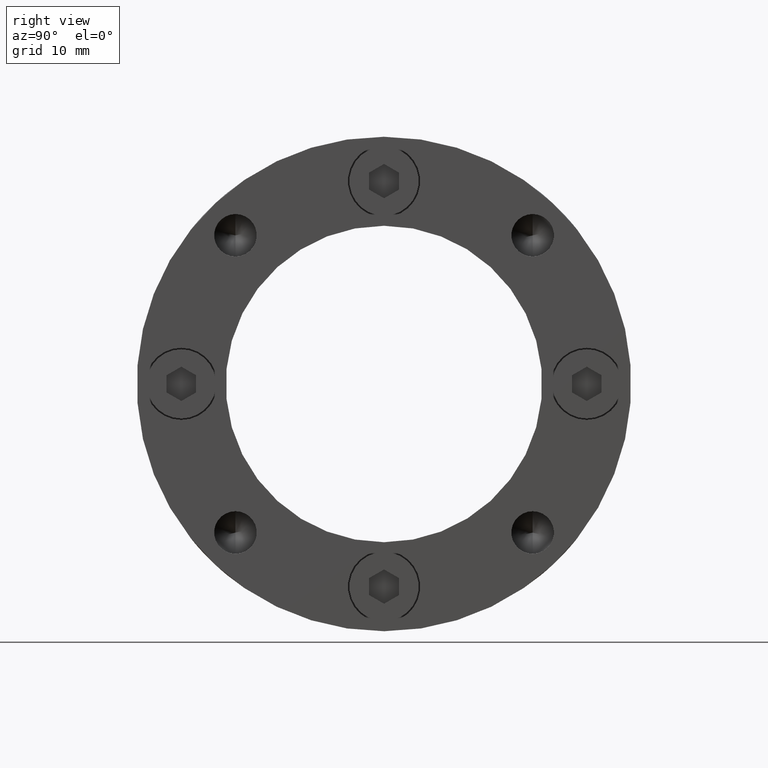
[diagram: clean part render]
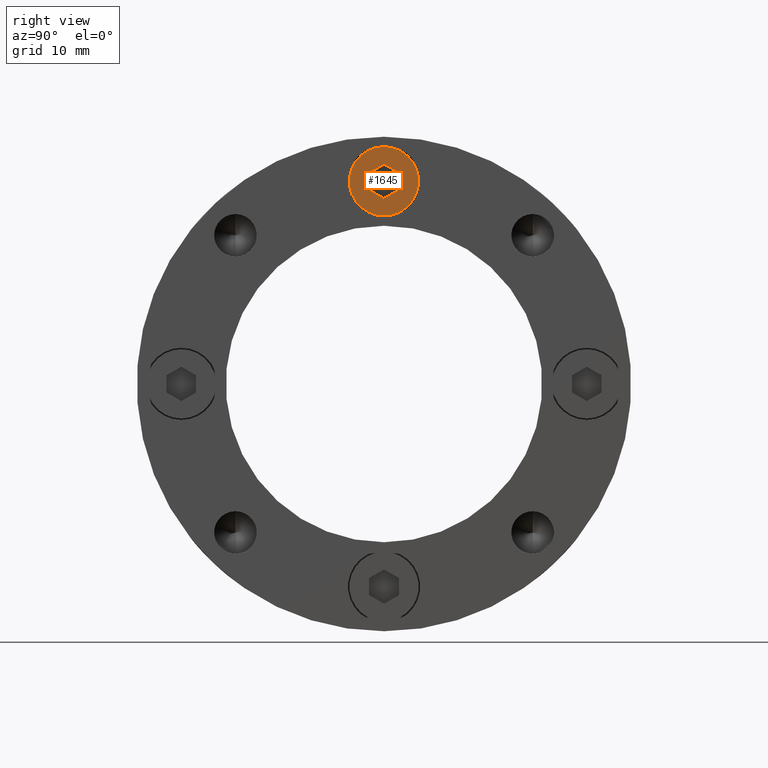
[diagram: same view with one face highlighted and labeled with its STEP entity id]
A machine part, right view. The second image highlights one B-rep face of the part: STEP entity #1645.
In plain terms, the highlighted planar face has unit normal (1, 0, 0).
Its self-contained STEP definition (entity closure, byte-faithful):
#442 = VERTEX_POINT ( 'NONE', #1479 ) ;
#448 = VERTEX_POINT ( 'NONE', #1485 ) ;
#449 = VERTEX_POINT ( 'NONE', #1486 ) ;
#451 = VERTEX_POINT ( 'NONE', #1488 ) ;
#452 = VERTEX_POINT ( 'NONE', #1489 ) ;
#456 = VERTEX_POINT ( 'NONE', #1493 ) ;
#459 = VERTEX_POINT ( 'NONE', #1496 ) ;
#460 = VERTEX_POINT ( 'NONE', #1497 ) ;
#493 = AXIS2_PLACEMENT_3D ( 'NONE', #2552, #2557, #2558 ) ;
#499 = EDGE_CURVE ( 'NONE', #451, #442, #1832, .T. ) ;
#500 = EDGE_CURVE ( 'NONE', #452, #451, #1834, .T. ) ;
#501 = EDGE_CURVE ( 'NONE', #460, #452, #1838, .T. ) ;
#693 = FACE_BOUND ( 'NONE', #921, .T. ) ;
#696 = FACE_OUTER_BOUND ( 'NONE', #881, .T. ) ;
#861 = CIRCLE ( 'NONE', #3390, 3.500000000000000000 ) ;
#876 = LINE ( 'NONE', #3162, #880 ) ;
#878 = LINE ( 'NONE', #3166, #884 ) ;
#881 = EDGE_LOOP ( 'NONE', ( #935, #934 ) ) ;
#880 = VECTOR ( 'NONE', #3153, 1000.000000000000000 ) ;
#882 = CIRCLE ( 'NONE', #3397, 3.500000000000000000 ) ;
#884 = VECTOR ( 'NONE', #3167, 1000.000000000000000 ) ;
#921 = EDGE_LOOP ( 'NONE', ( #941, #940, #939, #938, #937, #936 ) ) ;
#934 = ORIENTED_EDGE ( 'NONE', *, *, #3483, .T. ) ;
#935 = ORIENTED_EDGE ( 'NONE', *, *, #3518, .T. ) ;
#936 = ORIENTED_EDGE ( 'NONE', *, *, #501, .F. ) ;
#937 = ORIENTED_EDGE ( 'NONE', *, *, #500, .F. ) ;
#938 = ORIENTED_EDGE ( 'NONE', *, *, #499, .F. ) ;
#939 = ORIENTED_EDGE ( 'NONE', *, *, #3516, .F. ) ;
#940 = ORIENTED_EDGE ( 'NONE', *, *, #3509, .F. ) ;
#941 = ORIENTED_EDGE ( 'NONE', *, *, #3525, .F. ) ;
#1479 = CARTESIAN_POINT ( 'NONE',  ( 4.046263255784118500E-016, 4.000000000000000000, 1.732050807568877400 ) ) ;
#1485 = CARTESIAN_POINT ( 'NONE',  ( 4.286263797015736600E-016, 4.000000000000000000, 3.500000000000000000 ) ) ;
#1486 = CARTESIAN_POINT ( 'NONE',  ( 1.499999999999999800, 4.000000000000000000, -0.8660254037844389300 ) ) ;
#1488 = CARTESIAN_POINT ( 'NONE',  ( -1.499999999999999100, 4.000000000000000000, 0.8660254037844393700 ) ) ;
#1489 = CARTESIAN_POINT ( 'NONE',  ( -1.499999999999999800, 4.000000000000000000, -0.8660254037844386000 ) ) ;
#1493 = CARTESIAN_POINT ( 'NONE',  ( 0.0000000000000000000, 4.000000000000000000, -3.500000000000000000 ) ) ;
#1496 = CARTESIAN_POINT ( 'NONE',  ( 1.500000000000000000, 4.000000000000000000, 0.8660254037844387100 ) ) ;
#1497 = CARTESIAN_POINT ( 'NONE',  ( -1.084202172485504400E-016, 4.000000000000000000, -1.732050807568877200 ) ) ;
#1500 = CARTESIAN_POINT ( 'NONE',  ( -1.499999999999999100, 4.000000000000000000, 0.8660254037844393700 ) ) ;
#1501 = CARTESIAN_POINT ( 'NONE',  ( -1.499999999999999800, 4.000000000000000000, -0.8660254037844386000 ) ) ;
#1502 = CARTESIAN_POINT ( 'NONE',  ( -1.767567020076689400E-016, 4.000000000000000000, -1.732050807568877200 ) ) ;
#1503 = DIRECTION ( 'NONE',  ( 0.8660254037844387100, 0.0000000000000000000, 0.4999999999999998300 ) ) ;
#1504 = DIRECTION ( 'NONE',  ( 3.755786496842897100E-016, 0.0000000000000000000, 1.000000000000000000 ) ) ;
#1505 = DIRECTION ( 'NONE',  ( -0.8660254037844386000, 0.0000000000000000000, 0.5000000000000001100 ) ) ;
#1645 = ADVANCED_FACE ( 'NONE', ( #693, #696 ), #2551, .T. ) ;
#1832 = LINE ( 'NONE', #1500, #1833 ) ;
#1833 = VECTOR ( 'NONE', #1503, 1000.000000000000100 ) ;
#1834 = LINE ( 'NONE', #1501, #1836 ) ;
#1836 = VECTOR ( 'NONE', #1504, 1000.000000000000000 ) ;
#1838 = LINE ( 'NONE', #1502, #1839 ) ;
#1839 = VECTOR ( 'NONE', #1505, 1000.000000000000000 ) ;
#1846 = LINE ( 'NONE', #3176, #1847 ) ;
#1847 = VECTOR ( 'NONE', #3177, 1000.000000000000000 ) ;
#2551 = PLANE ( 'NONE',  #493 ) ;
#2552 = CARTESIAN_POINT ( 'NONE',  ( 0.0000000000000000000, 4.000000000000000000, 0.0000000000000000000 ) ) ;
#2557 = DIRECTION ( 'NONE',  ( 0.0000000000000000000, 1.000000000000000000, 0.0000000000000000000 ) ) ;
#2558 = DIRECTION ( 'NONE',  ( 0.0000000000000000000, -0.0000000000000000000, 1.000000000000000000 ) ) ;
#3153 = DIRECTION ( 'NONE',  ( -1.251928832280965900E-016, 0.0000000000000000000, -1.000000000000000000 ) ) ;
#3155 = CARTESIAN_POINT ( 'NONE',  ( 0.0000000000000000000, 4.000000000000000000, 0.0000000000000000000 ) ) ;
#3156 = DIRECTION ( 'NONE',  ( 0.0000000000000000000, 1.000000000000000000, 0.0000000000000000000 ) ) ;
#3157 = DIRECTION ( 'NONE',  ( 0.0000000000000000000, 0.0000000000000000000, 1.000000000000000000 ) ) ;
#3162 = CARTESIAN_POINT ( 'NONE',  ( 1.500000000000000000, 4.000000000000000000, 0.8660254037844387100 ) ) ;
#3166 = CARTESIAN_POINT ( 'NONE',  ( 4.046263255784118500E-016, 4.000000000000000000, 1.732050807568877400 ) ) ;
#3167 = DIRECTION ( 'NONE',  ( 0.8660254037844386000, 0.0000000000000000000, -0.5000000000000001100 ) ) ;
#3170 = CARTESIAN_POINT ( 'NONE',  ( 0.0000000000000000000, 4.000000000000000000, 0.0000000000000000000 ) ) ;
#3171 = DIRECTION ( 'NONE',  ( 0.0000000000000000000, 1.000000000000000000, 0.0000000000000000000 ) ) ;
#3172 = DIRECTION ( 'NONE',  ( 0.0000000000000000000, 0.0000000000000000000, 1.000000000000000000 ) ) ;
#3176 = CARTESIAN_POINT ( 'NONE',  ( 1.499999999999999800, 4.000000000000000000, -0.8660254037844389300 ) ) ;
#3177 = DIRECTION ( 'NONE',  ( -0.8660254037844387100, 0.0000000000000000000, -0.4999999999999998300 ) ) ;
#3390 = AXIS2_PLACEMENT_3D ( 'NONE', #3155, #3156, #3157 ) ;
#3397 = AXIS2_PLACEMENT_3D ( 'NONE', #3170, #3171, #3172 ) ;
#3483 = EDGE_CURVE ( 'NONE', #448, #456, #861, .T. ) ;
#3509 = EDGE_CURVE ( 'NONE', #459, #449, #876, .T. ) ;
#3516 = EDGE_CURVE ( 'NONE', #442, #459, #878, .T. ) ;
#3518 = EDGE_CURVE ( 'NONE', #456, #448, #882, .T. ) ;
#3525 = EDGE_CURVE ( 'NONE', #449, #460, #1846, .T. ) ;